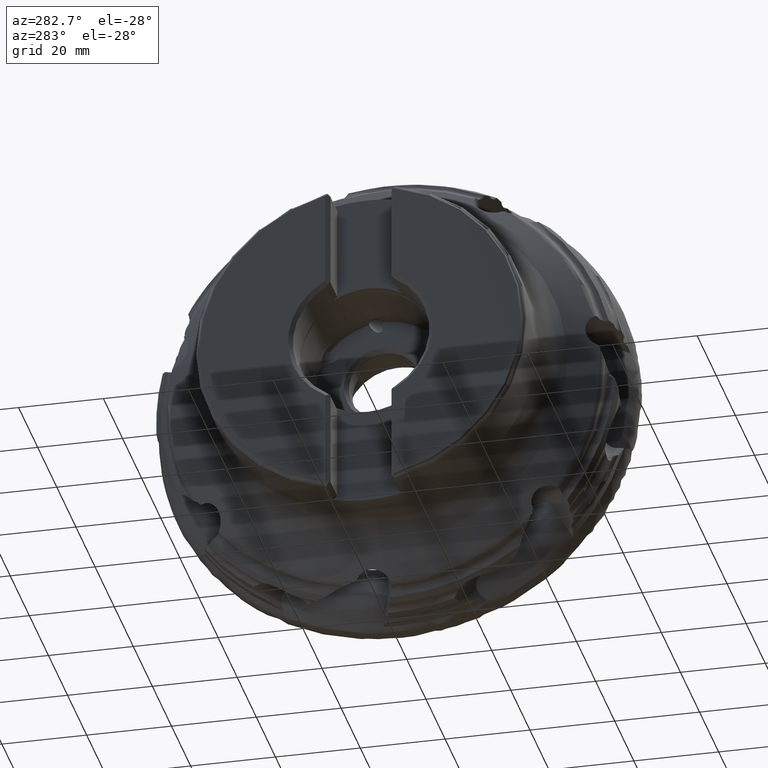
[diagram: clean part render]
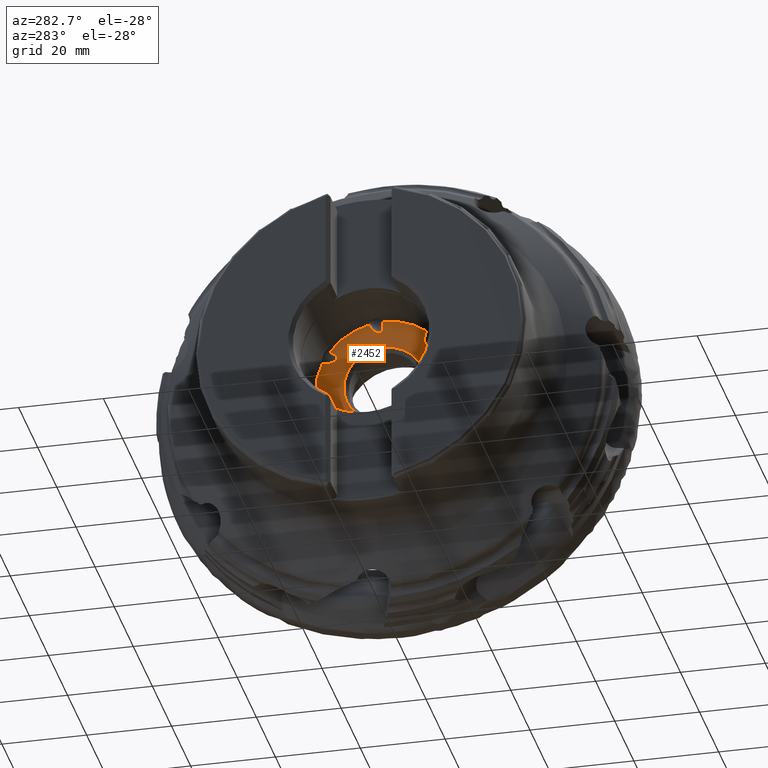
[diagram: same view with one face highlighted and labeled with its STEP entity id]
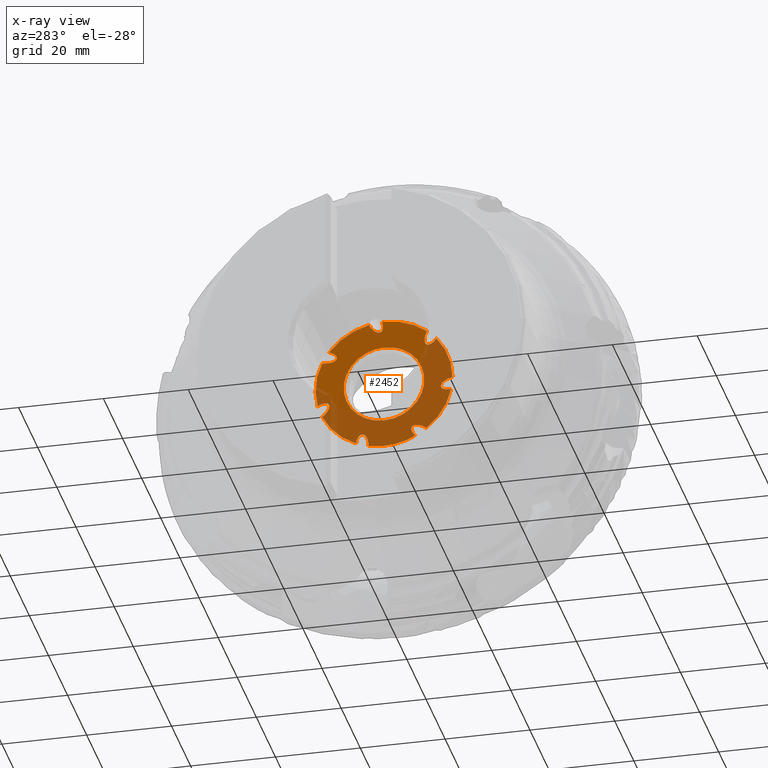
[diagram: x-ray of the same camera — body ghosted, the highlighted face saturated]
A machine part, auxiliary view. The second image highlights one B-rep face of the part: STEP entity #2452.
The next image is the same camera in x-ray: the body ghosted, the highlighted face saturated — about 57% of this face is hidden behind the body in this view.
In plain terms, the highlighted planar face has unit normal (1, 0, -0).
Its self-contained STEP definition (entity closure, byte-faithful):
#142 = EDGE_LOOP ( 'NONE', ( #1306, #1307, #1308, #1309, #1310, #1311, #1312, #1313, #1314, #1315, #1316, #1317, #1318, #1319, #1320, #1321, #1322, #1323, #1324, #1325, #1326, #1327, #1328 ) ) ;
#143 = EDGE_LOOP ( 'NONE', ( #1329, #1330 ) ) ;
#213 = VERTEX_POINT ( 'NONE', #10922 ) ;
#214 = VERTEX_POINT ( 'NONE', #10894 ) ;
#222 = VERTEX_POINT ( 'NONE', #10934 ) ;
#857 = VERTEX_POINT ( 'NONE', #10972 ) ;
#859 = VERTEX_POINT ( 'NONE', #10975 ) ;
#862 = VERTEX_POINT ( 'NONE', #10962 ) ;
#864 = VERTEX_POINT ( 'NONE', #10971 ) ;
#1089 = FACE_BOUND ( 'NONE', #143, .T. ) ;
#1092 = FACE_OUTER_BOUND ( 'NONE', #142, .T. ) ;
#1306 = ORIENTED_EDGE ( 'NONE', *, *, #5751, .F. ) ;
#1307 = ORIENTED_EDGE ( 'NONE', *, *, #2865, .T. ) ;
#1308 = ORIENTED_EDGE ( 'NONE', *, *, #4281, .T. ) ;
#1309 = ORIENTED_EDGE ( 'NONE', *, *, #7015, .F. ) ;
#1310 = ORIENTED_EDGE ( 'NONE', *, *, #2601, .T. ) ;
#1311 = ORIENTED_EDGE ( 'NONE', *, *, #2867, .T. ) ;
#1312 = ORIENTED_EDGE ( 'NONE', *, *, #6998, .F. ) ;
#1313 = ORIENTED_EDGE ( 'NONE', *, *, #2577, .T. ) ;
#1314 = ORIENTED_EDGE ( 'NONE', *, *, #3061, .T. ) ;
#1315 = ORIENTED_EDGE ( 'NONE', *, *, #6986, .F. ) ;
#1316 = ORIENTED_EDGE ( 'NONE', *, *, #2863, .F. ) ;
#1317 = ORIENTED_EDGE ( 'NONE', *, *, #15687, .T. ) ;
#1318 = ORIENTED_EDGE ( 'NONE', *, *, #3056, .T. ) ;
#1319 = ORIENTED_EDGE ( 'NONE', *, *, #3328, .F. ) ;
#1320 = ORIENTED_EDGE ( 'NONE', *, *, #3063, .T. ) ;
#1321 = ORIENTED_EDGE ( 'NONE', *, *, #5610, .T. ) ;
#1322 = ORIENTED_EDGE ( 'NONE', *, *, #3335, .F. ) ;
#1323 = ORIENTED_EDGE ( 'NONE', *, *, #3052, .T. ) ;
#1324 = ORIENTED_EDGE ( 'NONE', *, *, #6989, .T. ) ;
#1325 = ORIENTED_EDGE ( 'NONE', *, *, #3339, .F. ) ;
#1326 = ORIENTED_EDGE ( 'NONE', *, *, #3059, .T. ) ;
#1327 = ORIENTED_EDGE ( 'NONE', *, *, #10444, .T. ) ;
#1328 = ORIENTED_EDGE ( 'NONE', *, *, #3344, .F. ) ;
#1329 = ORIENTED_EDGE ( 'NONE', *, *, #2540, .T. ) ;
#1330 = ORIENTED_EDGE ( 'NONE', *, *, #3049, .T. ) ;
#2182 = VERTEX_POINT ( 'NONE', #10957 ) ;
#2184 = VERTEX_POINT ( 'NONE', #10956 ) ;
#2186 = VERTEX_POINT ( 'NONE', #10958 ) ;
#2189 = VERTEX_POINT ( 'NONE', #10955 ) ;
#2452 = ADVANCED_FACE ( 'NONE', ( #1092, #1089 ), #15320, .F. ) ;
#2540 = EDGE_CURVE ( 'NONE', #5883, #5900, #4613, .T. ) ;
#2577 = EDGE_CURVE ( 'NONE', #857, #862, #11789, .T. ) ;
#2601 = EDGE_CURVE ( 'NONE', #864, #213, #12167, .T. ) ;
#2863 = EDGE_CURVE ( 'NONE', #2182, #6157, #4807, .T. ) ;
#2865 = EDGE_CURVE ( 'NONE', #6057, #222, #5669, .T. ) ;
#2867 = EDGE_CURVE ( 'NONE', #213, #5946, #5665, .T. ) ;
#3049 = EDGE_CURVE ( 'NONE', #5900, #5883, #4926, .T. ) ;
#3052 = EDGE_CURVE ( 'NONE', #7062, #2186, #5637, .T. ) ;
#3056 = EDGE_CURVE ( 'NONE', #859, #12473, #5636, .T. ) ;
#3059 = EDGE_CURVE ( 'NONE', #12485, #5817, #5634, .T. ) ;
#3061 = EDGE_CURVE ( 'NONE', #862, #6154, #12450, .T. ) ;
#3063 = EDGE_CURVE ( 'NONE', #12484, #2184, #12451, .T. ) ;
#3328 = EDGE_CURVE ( 'NONE', #12484, #12473, #5072, .T. ) ;
#3335 = EDGE_CURVE ( 'NONE', #7062, #5940, #5074, .T. ) ;
#3339 = EDGE_CURVE ( 'NONE', #12485, #2189, #5080, .T. ) ;
#3344 = EDGE_CURVE ( 'NONE', #5774, #5775, #5079, .T. ) ;
#3995 = CARTESIAN_POINT ( 'NONE',  ( -23.94999999999999600, 3.516889569651723900, 15.76242328307656700 ) ) ;
#4009 = CARTESIAN_POINT ( 'NONE',  ( -23.94999999999999600, 12.89698878108456800, 9.720605967766559300 ) ) ;
#4010 = CARTESIAN_POINT ( 'NONE',  ( -23.94999999999999600, 6.607040092506093000, -14.73667266434375900 ) ) ;
#4065 = AXIS2_PLACEMENT_3D ( 'NONE', #15316, #15318, #15371 ) ;
#4167 = CARTESIAN_POINT ( 'NONE',  ( -23.94999999999999600, 0.4412652054259407200, 16.14397054687847400 ) ) ;
#4168 = CARTESIAN_POINT ( 'NONE',  ( -23.94999999999999200, -0.04433167914064659700, 14.58359810059925200 ) ) ;
#4172 = CARTESIAN_POINT ( 'NONE',  ( -23.94999999999999200, 0.2480611301738925600, 13.50774608649895500 ) ) ;
#4174 = CARTESIAN_POINT ( 'NONE',  ( -23.94999999999999600, 1.157732773318029400, 13.50774608649895500 ) ) ;
#4244 = AXIS2_PLACEMENT_3D ( 'NONE', #6588, #6589, #6590 ) ;
#4281 = EDGE_CURVE ( 'NONE', #222, #214, #9488, .T. ) ;
#4613 = CIRCLE ( 'NONE', #4244, 9.500000000000001800 ) ;
#4807 = CIRCLE ( 'NONE', #7598, 16.14999999999999500 ) ;
#4926 = CIRCLE ( 'NONE', #7604, 9.500000000000001800 ) ;
#5072 = CIRCLE ( 'NONE', #7616, 16.14999999999999500 ) ;
#5074 = CIRCLE ( 'NONE', #7617, 16.14999999999999500 ) ;
#5079 = CIRCLE ( 'NONE', #7621, 16.14999999999999500 ) ;
#5080 = CIRCLE ( 'NONE', #7619, 16.14999999999999500 ) ;
#5595 = CIRCLE ( 'NONE', #7874, 16.14999999999999500 ) ;
#5610 = EDGE_CURVE ( 'NONE', #2184, #5940, #9504, .T. ) ;
#5634 =( BOUNDED_CURVE ( )  B_SPLINE_CURVE ( 3, ( #8681, #8674, #8661, #8683 ),
 .UNSPECIFIED., .F., .F. ) 
 B_SPLINE_CURVE_WITH_KNOTS ( ( 4, 4 ),
 ( 1.858880446031161400, 3.141592653589793100 ),
 .UNSPECIFIED. ) 
 CURVE ( )  GEOMETRIC_REPRESENTATION_ITEM ( )  RATIONAL_B_SPLINE_CURVE ( ( 1.000000000000000000, 0.8675234410690375600, 0.8675234410690375600, 1.000000000000000000 ) ) 
 REPRESENTATION_ITEM ( '' )  );
#5636 =( BOUNDED_CURVE ( )  B_SPLINE_CURVE ( 3, ( #8673, #8672, #8679, #8680 ),
 .UNSPECIFIED., .F., .F. ) 
 B_SPLINE_CURVE_WITH_KNOTS ( ( 4, 4 ),
 ( 3.377881931417576300, 4.758523254358895100 ),
 .UNSPECIFIED. ) 
 CURVE ( )  GEOMETRIC_REPRESENTATION_ITEM ( )  RATIONAL_B_SPLINE_CURVE ( ( 1.000000000000000000, 0.8473612416002729300, 0.8473612416002729300, 1.000000000000000000 ) ) 
 REPRESENTATION_ITEM ( '' )  );
#5637 =( BOUNDED_CURVE ( )  B_SPLINE_CURVE ( 3, ( #8665, #8666, #8670, #8671 ),
 .UNSPECIFIED., .F., .F. ) 
 B_SPLINE_CURVE_WITH_KNOTS ( ( 4, 4 ),
 ( 1.858880446031159900, 4.712388980384690600 ),
 .UNSPECIFIED. ) 
 CURVE ( )  GEOMETRIC_REPRESENTATION_ITEM ( )  RATIONAL_B_SPLINE_CURVE ( ( 1.000000000000000000, 0.4290296505956314700, 0.4290296505956314700, 1.000000000000000000 ) ) 
 REPRESENTATION_ITEM ( '' )  );
#5665 =( BOUNDED_CURVE ( )  B_SPLINE_CURVE ( 3, ( #8340, #8334, #8352, #8353 ),
 .UNSPECIFIED., .F., .F. ) 
 B_SPLINE_CURVE_WITH_KNOTS ( ( 4, 4 ),
 ( 3.255222794778464200, 4.758523254358895100 ),
 .UNSPECIFIED. ) 
 CURVE ( )  GEOMETRIC_REPRESENTATION_ITEM ( )  RATIONAL_B_SPLINE_CURVE ( ( 1.000000000000000000, 0.8203753416718158100, 0.8203753416718158100, 1.000000000000000000 ) ) 
 REPRESENTATION_ITEM ( '' )  );
#5669 =( BOUNDED_CURVE ( )  B_SPLINE_CURVE ( 3, ( #8342, #8343, #8348, #8349 ),
 .UNSPECIFIED., .F., .F. ) 
 B_SPLINE_CURVE_WITH_KNOTS ( ( 4, 4 ),
 ( 1.858880446031162100, 4.712388980384690600 ),
 .UNSPECIFIED. ) 
 CURVE ( )  GEOMETRIC_REPRESENTATION_ITEM ( )  RATIONAL_B_SPLINE_CURVE ( ( 1.000000000000000000, 0.4290296505956323600, 0.4290296505956323600, 1.000000000000000000 ) ) 
 REPRESENTATION_ITEM ( '' )  );
#5751 = EDGE_CURVE ( 'NONE', #6057, #5774, #5595, .T. ) ;
#5774 = VERTEX_POINT ( 'NONE', #13983 ) ;
#5775 = VERTEX_POINT ( 'NONE', #13984 ) ;
#5817 = VERTEX_POINT ( 'NONE', #14014 ) ;
#5883 = VERTEX_POINT ( 'NONE', #14064 ) ;
#5900 = VERTEX_POINT ( 'NONE', #14079 ) ;
#5940 = VERTEX_POINT ( 'NONE', #14107 ) ;
#5946 = VERTEX_POINT ( 'NONE', #14111 ) ;
#6057 = VERTEX_POINT ( 'NONE', #14206 ) ;
#6154 = VERTEX_POINT ( 'NONE', #14276 ) ;
#6157 = VERTEX_POINT ( 'NONE', #14274 ) ;
#6588 = CARTESIAN_POINT ( 'NONE',  ( -23.94999999999999600, 0.0000000000000000000, 0.0000000000000000000 ) ) ;
#6589 = DIRECTION ( 'NONE',  ( 1.000000000000000000, -0.0000000000000000000, -0.0000000000000000000 ) ) ;
#6590 = DIRECTION ( 'NONE',  ( 0.0000000000000000000, 0.0000000000000000000, -1.000000000000000000 ) ) ;
#6853 = CARTESIAN_POINT ( 'NONE',  ( -23.94999999999999600, -12.34674007008804800, 10.41059602720619800 ) ) ;
#6880 = CARTESIAN_POINT ( 'NONE',  ( -23.94999999999999200, -11.74987950979903700, 9.530431406311091500 ) ) ;
#6908 = CARTESIAN_POINT ( 'NONE',  ( -23.94999999999999200, -11.06366003359033100, 9.022381694402902500 ) ) ;
#6909 = CARTESIAN_POINT ( 'NONE',  ( -23.94999999999999600, -10.47168790492911800, 9.022381694402898900 ) ) ;
#6986 = EDGE_CURVE ( 'NONE', #6157, #6154, #15084, .T. ) ;
#6989 = EDGE_CURVE ( 'NONE', #2186, #2189, #9570, .T. ) ;
#6998 = EDGE_CURVE ( 'NONE', #857, #5946, #15091, .T. ) ;
#7015 = EDGE_CURVE ( 'NONE', #864, #214, #15099, .T. ) ;
#7062 = VERTEX_POINT ( 'NONE', #14635 ) ;
#7192 = CARTESIAN_POINT ( 'NONE',  ( -23.94999999999999600, -15.83739824522692500, -3.162169638410154500 ) ) ;
#7193 = CARTESIAN_POINT ( 'NONE',  ( -23.94999999999998900, -14.36539502684272800, -3.276191342378235800 ) ) ;
#7198 = CARTESIAN_POINT ( 'NONE',  ( -23.94999999999998900, -13.40458133617077700, -2.843990697063612400 ) ) ;
#7199 = CARTESIAN_POINT ( 'NONE',  ( -23.94999999999999600, -13.40458133617077300, -2.067821120862434600 ) ) ;
#7598 = AXIS2_PLACEMENT_3D ( 'NONE', #8344, #8345, #8346 ) ;
#7604 = AXIS2_PLACEMENT_3D ( 'NONE', #8667, #8668, #8669 ) ;
#7616 = AXIS2_PLACEMENT_3D ( 'NONE', #9082, #9083, #9084 ) ;
#7617 = AXIS2_PLACEMENT_3D ( 'NONE', #9097, #9098, #9099 ) ;
#7619 = AXIS2_PLACEMENT_3D ( 'NONE', #9104, #9105, #9106 ) ;
#7621 = AXIS2_PLACEMENT_3D ( 'NONE', #9113, #9114, #9115 ) ;
#7874 = AXIS2_PLACEMENT_3D ( 'NONE', #13738, #13739, #13740 ) ;
#7881 = AXIS2_PLACEMENT_3D ( 'NONE', #14372, #14373, #14374 ) ;
#7883 = AXIS2_PLACEMENT_3D ( 'NONE', #14428, #14429, #14430 ) ;
#7890 = AXIS2_PLACEMENT_3D ( 'NONE', #14553, #14554, #14555 ) ;
#8334 = CARTESIAN_POINT ( 'NONE',  ( -23.94999999999999200, -13.40458133617077300, -1.219564232705295100 ) ) ;
#8340 = CARTESIAN_POINT ( 'NONE',  ( -23.94999999999999600, -13.40458133617077300, -2.067821120862434600 ) ) ;
#8342 = CARTESIAN_POINT ( 'NONE',  ( -23.94999999999999600, -7.402172517660724300, -14.35375706979841200 ) ) ;
#8343 = CARTESIAN_POINT ( 'NONE',  ( -23.94999999999999600, -4.352524557914018800, -11.08349333837246300 ) ) ;
#8344 = CARTESIAN_POINT ( 'NONE',  ( -23.94999999999999600, 0.0000000000000000000, 0.0000000000000000000 ) ) ;
#8345 = DIRECTION ( 'NONE',  ( 1.000000000000000000, -0.0000000000000000000, -0.0000000000000000000 ) ) ;
#8346 = DIRECTION ( 'NONE',  ( 0.0000000000000000000, 0.0000000000000000000, -1.000000000000000000 ) ) ;
#8348 = CARTESIAN_POINT ( 'NONE',  ( -23.94999999999999600, -6.293587316807199600, -9.711610265875661300 ) ) ;
#8349 = CARTESIAN_POINT ( 'NONE',  ( -23.94999999999999600, -9.900492949357166900, -12.58802152404430600 ) ) ;
#8352 = CARTESIAN_POINT ( 'NONE',  ( -23.94999999999999200, -14.52001655154871600, -0.4113708465094880200 ) ) ;
#8353 = CARTESIAN_POINT ( 'NONE',  ( -23.94999999999999600, -16.14980797395614000, -0.07875534485056294400 ) ) ;
#8661 = CARTESIAN_POINT ( 'NONE',  ( -23.94999999999999600, 5.858499466093618900, -12.58902012558002100 ) ) ;
#8665 = CARTESIAN_POINT ( 'NONE',  ( -23.94999999999999600, 15.64101675395926300, -4.022573169299098700 ) ) ;
#8666 = CARTESIAN_POINT ( 'NONE',  ( -23.94999999999999600, 11.77413484975541800, -1.777088390814113700 ) ) ;
#8667 = CARTESIAN_POINT ( 'NONE',  ( -23.94999999999999600, 0.0000000000000000000, 0.0000000000000000000 ) ) ;
#8668 = DIRECTION ( 'NONE',  ( 1.000000000000000000, -0.0000000000000000000, -0.0000000000000000000 ) ) ;
#8669 = DIRECTION ( 'NONE',  ( 0.0000000000000000000, 0.0000000000000000000, -1.000000000000000000 ) ) ;
#8670 = CARTESIAN_POINT ( 'NONE',  ( -23.94999999999999600, 10.86857484810522800, -3.974757356326569500 ) ) ;
#8671 = CARTESIAN_POINT ( 'NONE',  ( -23.94999999999999600, 14.47548048065516500, -6.851168614495268400 ) ) ;
#8672 = CARTESIAN_POINT ( 'NONE',  ( -23.94999999999999900, 1.968648360405477900, 13.50774608649895600 ) ) ;
#8673 = CARTESIAN_POINT ( 'NONE',  ( -23.94999999999999600, 1.157732773318029400, 13.50774608649895500 ) ) ;
#8674 = CARTESIAN_POINT ( 'NONE',  ( -23.94999999999999600, 6.411101229626055400, -13.41422454738302700 ) ) ;
#8678 = CARTESIAN_POINT ( 'NONE',  ( -23.94999999999999600, -10.47168790492911800, 9.022381694402898900 ) ) ;
#8679 = CARTESIAN_POINT ( 'NONE',  ( -23.94999999999999900, 2.896688917574148400, 14.39468665992728400 ) ) ;
#8680 = CARTESIAN_POINT ( 'NONE',  ( -23.94999999999999600, 3.516889569651723900, 15.76242328307656700 ) ) ;
#8681 = CARTESIAN_POINT ( 'NONE',  ( -23.94999999999999600, 6.607040092506093000, -14.73667266434375900 ) ) ;
#8682 = CARTESIAN_POINT ( 'NONE',  ( -23.94999999999999900, -9.295705986229071600, 9.022381694402900700 ) ) ;
#8683 = CARTESIAN_POINT ( 'NONE',  ( -23.94999999999999600, 5.168855142184575000, -12.58902012558001500 ) ) ;
#8684 = CARTESIAN_POINT ( 'NONE',  ( -23.94999999999999600, 12.89698878108456800, 9.720605967766559300 ) ) ;
#8686 = CARTESIAN_POINT ( 'NONE',  ( -23.94999999999999200, 11.77619246960439100, 9.283964049268373500 ) ) ;
#8687 = CARTESIAN_POINT ( 'NONE',  ( -23.94999999999999900, -9.140840456618260400, 10.63746036252951300 ) ) ;
#8688 = CARTESIAN_POINT ( 'NONE',  ( -23.94999999999999600, -10.13081398175517700, 12.57732515549602900 ) ) ;
#8691 = CARTESIAN_POINT ( 'NONE',  ( -23.94999999999999200, 11.10422438872322800, 8.643053597608345100 ) ) ;
#8692 = CARTESIAN_POINT ( 'NONE',  ( -23.94999999999999600, 11.10422438872322300, 8.010701183417976900 ) ) ;
#9082 = CARTESIAN_POINT ( 'NONE',  ( -23.94999999999999600, 0.0000000000000000000, 0.0000000000000000000 ) ) ;
#9083 = DIRECTION ( 'NONE',  ( 1.000000000000000000, -0.0000000000000000000, -0.0000000000000000000 ) ) ;
#9084 = DIRECTION ( 'NONE',  ( 0.0000000000000000000, 0.0000000000000000000, -1.000000000000000000 ) ) ;
#9097 = CARTESIAN_POINT ( 'NONE',  ( -23.94999999999999600, 0.0000000000000000000, 0.0000000000000000000 ) ) ;
#9098 = DIRECTION ( 'NONE',  ( 1.000000000000000000, -0.0000000000000000000, -0.0000000000000000000 ) ) ;
#9099 = DIRECTION ( 'NONE',  ( 0.0000000000000000000, 0.0000000000000000000, -1.000000000000000000 ) ) ;
#9104 = CARTESIAN_POINT ( 'NONE',  ( -23.94999999999999600, 0.0000000000000000000, 0.0000000000000000000 ) ) ;
#9105 = DIRECTION ( 'NONE',  ( 1.000000000000000000, -0.0000000000000000000, -0.0000000000000000000 ) ) ;
#9106 = DIRECTION ( 'NONE',  ( 0.0000000000000000000, 0.0000000000000000000, -1.000000000000000000 ) ) ;
#9113 = CARTESIAN_POINT ( 'NONE',  ( -23.94999999999999600, 0.0000000000000000000, 0.0000000000000000000 ) ) ;
#9114 = DIRECTION ( 'NONE',  ( 1.000000000000000000, -0.0000000000000000000, -0.0000000000000000000 ) ) ;
#9115 = DIRECTION ( 'NONE',  ( 0.0000000000000000000, 0.0000000000000000000, -1.000000000000000000 ) ) ;
#9488 =( BOUNDED_CURVE ( )  B_SPLINE_CURVE ( 3, ( #10415, #10435, #10449, #10451 ),
 .UNSPECIFIED., .F., .T. ) 
 B_SPLINE_CURVE_WITH_KNOTS ( ( 4, 4 ),
 ( 4.712388980384690600, 4.758523254358893300 ),
 .UNSPECIFIED. ) 
 CURVE ( )  GEOMETRIC_REPRESENTATION_ITEM ( )  RATIONAL_B_SPLINE_CURVE ( ( 1.000000000000000000, 0.9998226435947876700, 0.9998226435947876700, 1.000000000000000000 ) ) 
 REPRESENTATION_ITEM ( '' )  );
#9504 =( BOUNDED_CURVE ( )  B_SPLINE_CURVE ( 3, ( #13203, #13198, #13211, #13212 ),
 .UNSPECIFIED., .F., .F. ) 
 B_SPLINE_CURVE_WITH_KNOTS ( ( 4, 4 ),
 ( 3.027962512401127800, 4.758523254358893300 ),
 .UNSPECIFIED. ) 
 CURVE ( )  GEOMETRIC_REPRESENTATION_ITEM ( )  RATIONAL_B_SPLINE_CURVE ( ( 1.000000000000000000, 0.7656178007807836700, 0.7656178007807836700, 1.000000000000000000 ) ) 
 REPRESENTATION_ITEM ( '' )  );
#9570 =( BOUNDED_CURVE ( )  B_SPLINE_CURVE ( 3, ( #14379, #14378, #14384, #14385 ),
 .UNSPECIFIED., .F., .F. ) 
 B_SPLINE_CURVE_WITH_KNOTS ( ( 4, 4 ),
 ( 4.712388980384690600, 4.758523254358895100 ),
 .UNSPECIFIED. ) 
 CURVE ( )  GEOMETRIC_REPRESENTATION_ITEM ( )  RATIONAL_B_SPLINE_CURVE ( ( 1.000000000000000000, 0.9998226435947874500, 0.9998226435947874500, 1.000000000000000000 ) ) 
 REPRESENTATION_ITEM ( '' )  );
#9598 =( BOUNDED_CURVE ( )  B_SPLINE_CURVE ( 3, ( #14716, #14717, #14722, #14723 ),
 .UNSPECIFIED., .F., .F. ) 
 B_SPLINE_CURVE_WITH_KNOTS ( ( 4, 4 ),
 ( 3.141592653589793100, 4.758523254358893300 ),
 .UNSPECIFIED. ) 
 CURVE ( )  GEOMETRIC_REPRESENTATION_ITEM ( )  RATIONAL_B_SPLINE_CURVE ( ( 1.000000000000000000, 0.7937394558498067600, 0.7937394558498067600, 1.000000000000000000 ) ) 
 REPRESENTATION_ITEM ( '' )  );
#9664 =( BOUNDED_CURVE ( )  B_SPLINE_CURVE ( 3, ( #4167, #4168, #4172, #4174 ),
 .UNSPECIFIED., .F., .F. ) 
 B_SPLINE_CURVE_WITH_KNOTS ( ( 4, 4 ),
 ( 1.858880446031160300, 3.377881931417576300 ),
 .UNSPECIFIED. ) 
 CURVE ( )  GEOMETRIC_REPRESENTATION_ITEM ( )  RATIONAL_B_SPLINE_CURVE ( ( 1.000000000000000000, 0.8167865796375730600, 0.8167865796375730600, 1.000000000000000000 ) ) 
 REPRESENTATION_ITEM ( '' )  );
#10415 = CARTESIAN_POINT ( 'NONE',  ( -23.94999999999999600, -9.900492949357166900, -12.58802152404430600 ) ) ;
#10435 = CARTESIAN_POINT ( 'NONE',  ( -23.94999999999999900, -9.936565376235938300, -12.61678832455253200 ) ) ;
#10444 = EDGE_CURVE ( 'NONE', #5817, #5775, #9598, .T. ) ;
#10449 = CARTESIAN_POINT ( 'NONE',  ( -23.94999999999999900, -9.972296452159289600, -12.64596347900773300 ) ) ;
#10451 = CARTESIAN_POINT ( 'NONE',  ( -23.94999999999999600, -10.00766716572170400, -12.67553146420832800 ) ) ;
#10894 = CARTESIAN_POINT ( 'NONE',  ( -23.94999999999999600, -10.00766716572170400, -12.67553146420832800 ) ) ;
#10922 = CARTESIAN_POINT ( 'NONE',  ( -23.94999999999999600, -13.40458133617077300, -2.067821120862434600 ) ) ;
#10934 = CARTESIAN_POINT ( 'NONE',  ( -23.94999999999999600, -9.900492949357166900, -12.58802152404430600 ) ) ;
#10955 = CARTESIAN_POINT ( 'NONE',  ( -23.94999999999999600, 14.58464487063585200, -6.936182955879599100 ) ) ;
#10956 = CARTESIAN_POINT ( 'NONE',  ( -23.94999999999999600, 11.10422438872322300, 8.010701183417976900 ) ) ;
#10957 = CARTESIAN_POINT ( 'NONE',  ( -23.94999999999999600, 0.4412652054259407200, 16.14397054687847400 ) ) ;
#10958 = CARTESIAN_POINT ( 'NONE',  ( -23.94999999999999600, 14.47548048065516500, -6.851168614495268400 ) ) ;
#10962 = CARTESIAN_POINT ( 'NONE',  ( -23.94999999999999600, -10.47168790492911800, 9.022381694402898900 ) ) ;
#10971 = CARTESIAN_POINT ( 'NONE',  ( -23.94999999999999600, -15.83739824522692500, -3.162169638410154500 ) ) ;
#10972 = CARTESIAN_POINT ( 'NONE',  ( -23.94999999999999600, -12.34674007008804800, 10.41059602720619800 ) ) ;
#10975 = CARTESIAN_POINT ( 'NONE',  ( -23.94999999999999600, 1.157732773318029400, 13.50774608649895500 ) ) ;
#11789 =( BOUNDED_CURVE ( )  B_SPLINE_CURVE ( 3, ( #6853, #6880, #6908, #6909 ),
 .UNSPECIFIED., .F., .F. ) 
 B_SPLINE_CURVE_WITH_KNOTS ( ( 4, 4 ),
 ( 1.858880446031159200, 2.905303375762019200 ),
 .UNSPECIFIED. ) 
 CURVE ( )  GEOMETRIC_REPRESENTATION_ITEM ( )  RATIONAL_B_SPLINE_CURVE ( ( 1.000000000000000000, 0.9108126627933123000, 0.9108126627933123000, 1.000000000000000000 ) ) 
 REPRESENTATION_ITEM ( '' )  );
#12167 =( BOUNDED_CURVE ( )  B_SPLINE_CURVE ( 3, ( #7192, #7193, #7198, #7199 ),
 .UNSPECIFIED., .F., .F. ) 
 B_SPLINE_CURVE_WITH_KNOTS ( ( 4, 4 ),
 ( 1.858880446031158500, 3.255222794778464200 ),
 .UNSPECIFIED. ) 
 CURVE ( )  GEOMETRIC_REPRESENTATION_ITEM ( )  RATIONAL_B_SPLINE_CURVE ( ( 1.000000000000000000, 0.8440127129311074700, 0.8440127129311074700, 1.000000000000000000 ) ) 
 REPRESENTATION_ITEM ( '' )  );
#12450 =( BOUNDED_CURVE ( )  B_SPLINE_CURVE ( 3, ( #8678, #8682, #8687, #8688 ),
 .UNSPECIFIED., .F., .F. ) 
 B_SPLINE_CURVE_WITH_KNOTS ( ( 4, 4 ),
 ( 2.905303375762019200, 4.758523254358896000 ),
 .UNSPECIFIED. ) 
 CURVE ( )  GEOMETRIC_REPRESENTATION_ITEM ( )  RATIONAL_B_SPLINE_CURVE ( ( 1.000000000000000000, 0.7336987213583772100, 0.7336987213583772100, 1.000000000000000000 ) ) 
 REPRESENTATION_ITEM ( '' )  );
#12451 =( BOUNDED_CURVE ( )  B_SPLINE_CURVE ( 3, ( #8684, #8686, #8691, #8692 ),
 .UNSPECIFIED., .F., .F. ) 
 B_SPLINE_CURVE_WITH_KNOTS ( ( 4, 4 ),
 ( 1.858880446031161900, 3.027962512401127800 ),
 .UNSPECIFIED. ) 
 CURVE ( )  GEOMETRIC_REPRESENTATION_ITEM ( )  RATIONAL_B_SPLINE_CURVE ( ( 1.000000000000000000, 0.8893102928393027400, 0.8893102928393027400, 1.000000000000000000 ) ) 
 REPRESENTATION_ITEM ( '' )  );
#12473 = VERTEX_POINT ( 'NONE', #3995 ) ;
#12484 = VERTEX_POINT ( 'NONE', #4009 ) ;
#12485 = VERTEX_POINT ( 'NONE', #4010 ) ;
#13198 = CARTESIAN_POINT ( 'NONE',  ( -23.94999999999999600, 11.10422438872322600, 6.997376976685068000 ) ) ;
#13203 = CARTESIAN_POINT ( 'NONE',  ( -23.94999999999999600, 11.10422438872322300, 8.010701183417976900 ) ) ;
#13211 = CARTESIAN_POINT ( 'NONE',  ( -23.94999999999999600, 12.58976941803794800, 6.591340614588535400 ) ) ;
#13212 = CARTESIAN_POINT ( 'NONE',  ( -23.94999999999999600, 14.51630354363747500, 7.078095183661930400 ) ) ;
#13738 = CARTESIAN_POINT ( 'NONE',  ( -23.94999999999999600, 0.0000000000000000000, 0.0000000000000000000 ) ) ;
#13739 = DIRECTION ( 'NONE',  ( 1.000000000000000000, -0.0000000000000000000, -0.0000000000000000000 ) ) ;
#13740 = DIRECTION ( 'NONE',  ( 0.0000000000000000000, 0.0000000000000000000, -1.000000000000000000 ) ) ;
#13983 = CARTESIAN_POINT ( 'NONE',  ( -23.94999999999999600, 0.0000000000000000000, -16.14999999999999500 ) ) ;
#13984 = CARTESIAN_POINT ( 'NONE',  ( -23.94999999999999600, 3.670451137508152800, -15.72737385729622300 ) ) ;
#14014 = CARTESIAN_POINT ( 'NONE',  ( -23.94999999999999600, 5.168855142184575000, -12.58902012558001500 ) ) ;
#14064 = CARTESIAN_POINT ( 'NONE',  ( -23.94999999999999600, 0.0000000000000000000, 9.500000000000001800 ) ) ;
#14079 = CARTESIAN_POINT ( 'NONE',  ( -23.94999999999999600, 1.163414459189985700E-015, -9.500000000000001800 ) ) ;
#14107 = CARTESIAN_POINT ( 'NONE',  ( -23.94999999999999600, 14.51630354363747500, 7.078095183661930400 ) ) ;
#14111 = CARTESIAN_POINT ( 'NONE',  ( -23.94999999999999600, -16.14980797395614000, -0.07875534485056294400 ) ) ;
#14206 = CARTESIAN_POINT ( 'NONE',  ( -23.94999999999999600, -7.402172517660724300, -14.35375706979841200 ) ) ;
#14274 = CARTESIAN_POINT ( 'NONE',  ( -23.94999999999999600, 1.977804580622974800E-015, 16.14999999999999500 ) ) ;
#14276 = CARTESIAN_POINT ( 'NONE',  ( -23.94999999999999600, -10.13081398175517700, 12.57732515549602900 ) ) ;
#14372 = CARTESIAN_POINT ( 'NONE',  ( -23.94999999999999600, 0.0000000000000000000, 0.0000000000000000000 ) ) ;
#14373 = DIRECTION ( 'NONE',  ( 1.000000000000000000, -0.0000000000000000000, -0.0000000000000000000 ) ) ;
#14374 = DIRECTION ( 'NONE',  ( 0.0000000000000000000, 0.0000000000000000000, -1.000000000000000000 ) ) ;
#14378 = CARTESIAN_POINT ( 'NONE',  ( -23.94999999999999600, 14.51155290753394000, -6.879935415003497900 ) ) ;
#14379 = CARTESIAN_POINT ( 'NONE',  ( -23.94999999999999600, 14.47548048065516500, -6.851168614495268400 ) ) ;
#14384 = CARTESIAN_POINT ( 'NONE',  ( -23.94999999999999600, 14.54794749234025600, -6.908278555635770400 ) ) ;
#14385 = CARTESIAN_POINT ( 'NONE',  ( -23.94999999999999600, 14.58464487063585200, -6.936182955879599100 ) ) ;
#14428 = CARTESIAN_POINT ( 'NONE',  ( -23.94999999999999600, 0.0000000000000000000, 0.0000000000000000000 ) ) ;
#14429 = DIRECTION ( 'NONE',  ( 1.000000000000000000, -0.0000000000000000000, -0.0000000000000000000 ) ) ;
#14430 = DIRECTION ( 'NONE',  ( 0.0000000000000000000, 0.0000000000000000000, -1.000000000000000000 ) ) ;
#14553 = CARTESIAN_POINT ( 'NONE',  ( -23.94999999999999600, 0.0000000000000000000, 0.0000000000000000000 ) ) ;
#14554 = DIRECTION ( 'NONE',  ( 1.000000000000000000, -0.0000000000000000000, -0.0000000000000000000 ) ) ;
#14555 = DIRECTION ( 'NONE',  ( 0.0000000000000000000, 0.0000000000000000000, -1.000000000000000000 ) ) ;
#14635 = CARTESIAN_POINT ( 'NONE',  ( -23.94999999999999600, 15.64101675395926300, -4.022573169299098700 ) ) ;
#14716 = CARTESIAN_POINT ( 'NONE',  ( -23.94999999999999600, 5.168855142184575000, -12.58902012558001500 ) ) ;
#14717 = CARTESIAN_POINT ( 'NONE',  ( -23.94999999999999600, 4.257689464936447600, -12.58902012558002100 ) ) ;
#14722 = CARTESIAN_POINT ( 'NONE',  ( -23.94999999999999600, 3.628430080288587600, -13.90698145767992600 ) ) ;
#14723 = CARTESIAN_POINT ( 'NONE',  ( -23.94999999999999600, 3.670451137508152800, -15.72737385729622300 ) ) ;
#15084 = CIRCLE ( 'NONE', #7881, 16.14999999999999500 ) ;
#15091 = CIRCLE ( 'NONE', #7883, 16.14999999999999500 ) ;
#15099 = CIRCLE ( 'NONE', #7890, 16.14999999999999500 ) ;
#15316 = CARTESIAN_POINT ( 'NONE',  ( -23.94999999999999600, 9.500000000000001800, 0.0000000000000000000 ) ) ;
#15318 = DIRECTION ( 'NONE',  ( 1.000000000000000000, 0.0000000000000000000, -0.0000000000000000000 ) ) ;
#15320 = PLANE ( 'NONE',  #4065 ) ;
#15371 = DIRECTION ( 'NONE',  ( -0.0000000000000000000, 0.0000000000000000000, -1.000000000000000000 ) ) ;
#15687 = EDGE_CURVE ( 'NONE', #2182, #859, #9664, .T. ) ;